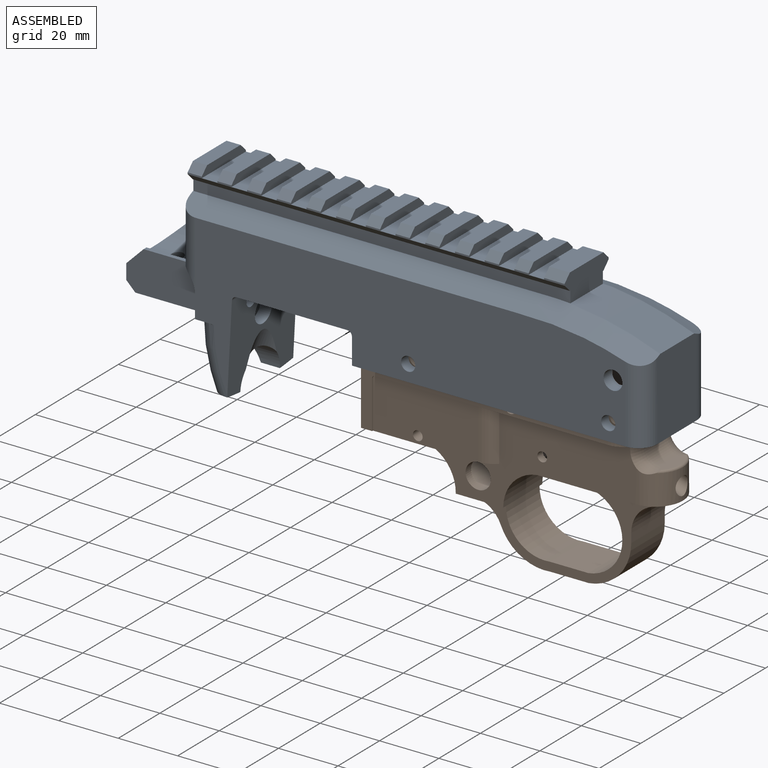
[diagram: assembled view]
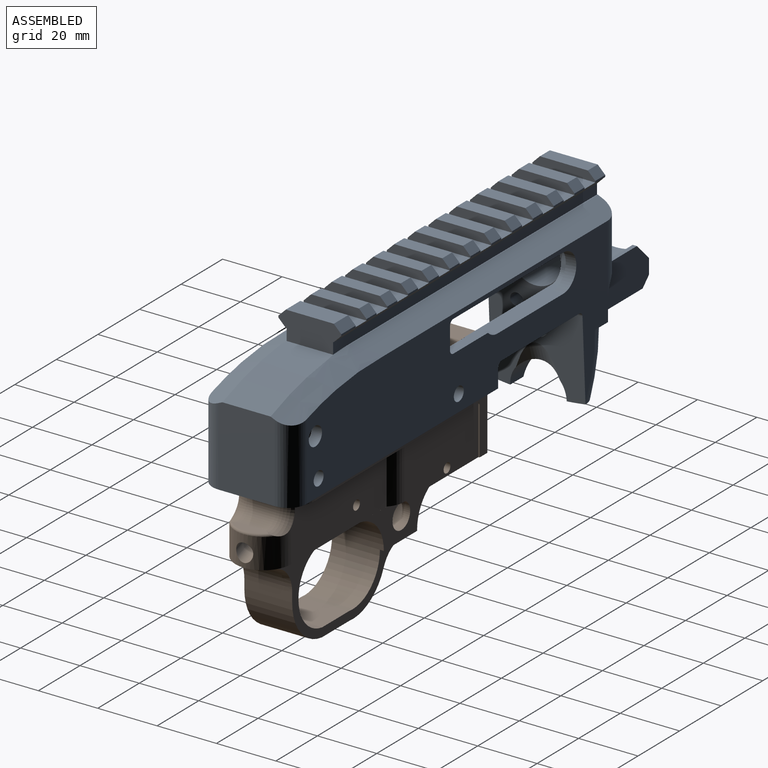
[diagram: assembled view, second angle]
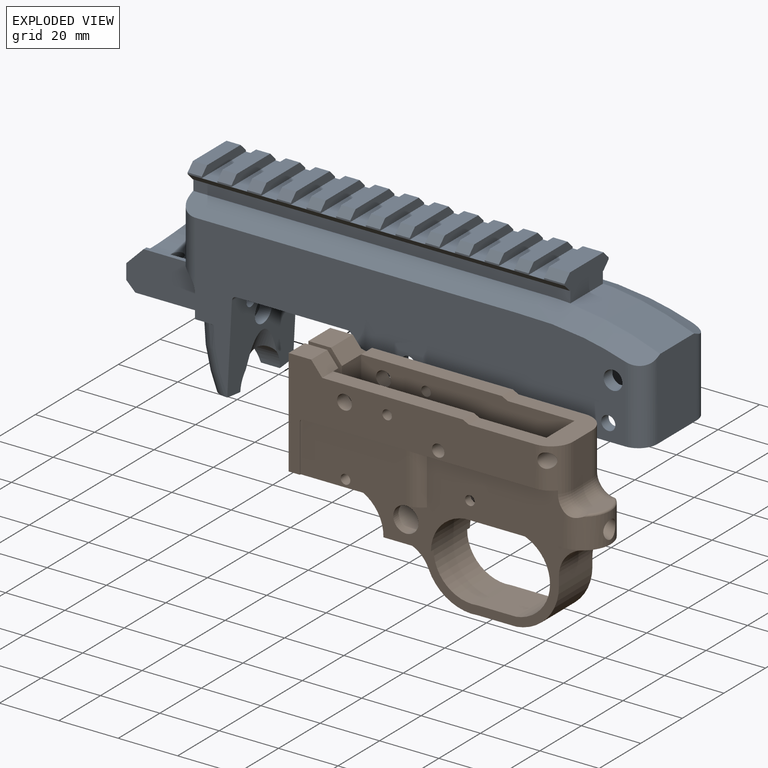
[diagram: exploded view]
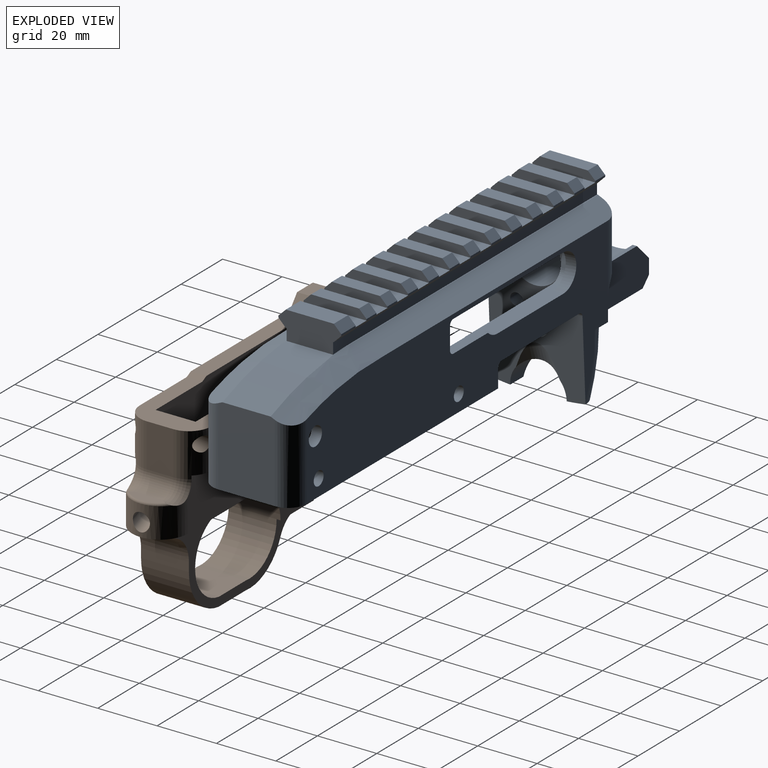
[diagram: exploded view, second angle]
ASSEMBLY  parts=2 mates=2
PART A: 187 faces, bbox 179.1x70.4x36.9 mm
  f0: bspline ~1.6x1.6mm, area 2.3mm2, adj f21
  f1: cylinder r=3.17mm len=31.75mm, axis (0,0,1), area 257.2mm2, adj f23,f41,f42,f43,f44,f45,f46,f47
  f2: cylinder r=2.38mm len=4.76mm, axis (0,0,-1), area 53.2mm2, adj f23,f48
  f3: cylinder r=6.29mm len=12.57mm, axis (0,0,1), area 70mm2, adj f23,f28,f29,f48,f49,f81
  f4: cylinder r=2.38mm len=5.11mm, axis (0,0,1), area 62.1mm2, adj f23,f44,f48
  f5: torus R=47.08mm, axis (0,0,1), area 218.4mm2, adj f9,f23,f37,f38,f63
  f6: cylinder r=11.68mm len=23.37mm, axis (1,0,0), area 466mm2, adj f7,f36,f57,f80,f88,f89,f90,f91
  f7: cylinder r=2.02mm len=8.96mm, axis (0,1,0), area 113.7mm2, adj f6,f37
  f8: torus R=47.08mm, axis (0,0,1), area 218.4mm2, adj f9,f13,f37,f38,f47,f65
  f9: cylinder r=53.43mm len=21.72mm, axis (0,0,1), area 273.6mm2, adj f5,f8,f13,f37
  f10: cylinder r=2.17mm len=19.69mm, axis (1,0,0), area 268.7mm2, adj f38,f96
  f11: cylinder r=2.17mm len=19.69mm, axis (1,0,0), area 268.7mm2, adj f38,f97
  f12: cylinder r=4.1mm len=8.38mm, axis (-1,-0.05,0), area 98.6mm2, adj f38,f98
  f13: cylinder r=9.53mm len=19.05mm, axis (1,0,0), area 244.8mm2, adj f8,f9,f14,f38,f63,f65
  f14: cylinder r=11.11mm len=14.71mm, axis (-0.34,0.94,0), area 75.1mm2, adj f13,f38
  f15: cylinder r=2.38mm len=5.11mm, axis (0,0,1), area 62.1mm2, adj f46,f47,f51
  f16: cylinder r=2.38mm len=4.76mm, axis (0,0,-1), area 53.2mm2, adj f47,f51
  f17: cylinder r=4.39mm len=5.19mm, axis (0,0,1), area 24.3mm2, adj f48,f81,f82,f99
  f18: cylinder r=3.17mm len=19.05mm, axis (1,0,0), area 380mm2, adj f61,f88,f93,f95,f97
  f19: cylinder r=3.17mm len=19.05mm, axis (1,0,0), area 380mm2, adj f61,f88,f94,f95,f96
  f20: cylinder r=8.74mm len=17.66mm, axis (1,0,0), area 969.5mm2, adj f64,f91
  f21: cylinder r=0.8mm len=1.6mm, axis (1,0,0), area 5.6mm2, adj f0,f74
  f22: cylinder r=101.73mm len=38.1mm, axis (0,0,1), area 515.7mm2, adj f35,f54,f55,f79,f87,f103,f104,f105
  f23: plane 144.78x51.45mm, normal (0,0,1), area 3401.5mm2, adj f1,f2,f3,f4,f5,f24,f25,f26
  f24: plane 7.43x3.56mm, normal (-1,0,0), area 26.4mm2, adj f23,f25,f30,f48
  f25: cylinder r=1.59mm len=3.56mm, axis (0,0,1), area 8.9mm2, adj f23,f24,f26,f48
  f26: plane 16.68x3.56mm, normal (0,-1,0), area 59.3mm2, adj f23,f25,f27,f48
  f27: cylinder r=6.35mm len=4.6mm, axis (0,0,1), area 18.3mm2, adj f23,f26,f28,f48
  f28: plane 31.62x3.56mm, normal (0,-1,0), area 112.5mm2, adj f3,f23,f27,f48
  f29: plane 52.9x3.49mm, normal (0,1,0), area 184.7mm2, adj f3,f23,f30,f49
  f30: cylinder r=1.59mm len=3.56mm, axis (0,0,1), area 8.8mm2, adj f23,f24,f29,f48,f49,f81
  f31: cylinder r=1.6mm len=2.89mm, axis (0,0,-1), area 6.4mm2, adj f23,f32,f40,f50
  f32: plane 6.92x3.56mm, normal (-1,0,0), area 22.4mm2, adj f23,f31,f33,f48,f50
  f33: plane 98.43x31.75mm, normal (0,1,0), area 884.6mm2, adj f23,f32,f34,f44,f45,f46,f47,f48
  f34: cylinder r=6.35mm len=26.32mm, axis (0,1,0), area 253.3mm2, adj f23,f33,f35,f54
  f35: extruded ~157.48x12.42mm, area 1319.2mm2, adj f22,f23,f34,f36,f54,f55,f57
  f36: cylinder r=6.35mm len=33.73mm, axis (0,-1,0), area 168.7mm2, adj f6,f23,f35,f37,f56,f57,f58,f60
  f37: plane 31.78x29.82mm, normal (0,1,0), area 525.6mm2, adj f5,f7,f8,f9,f23,f36,f47,f58
  f38: plane 32.73x32.38mm, normal (1,0.05,0), area 710.2mm2, adj f5,f8,f10,f11,f12,f13,f14,f23
  f39: cylinder r=1.6mm len=2.89mm, axis (0,0,1), area 6.2mm2, adj f23,f38,f40,f67
  f40: plane 37.39x2.22mm, normal (0,1,0), area 83.1mm2, adj f23,f31,f39,f67,f68
  f41: plane 127.73x19.05mm, normal (0,0,1), area 2074.5mm2, adj f1,f42,f46,f64,f69,f70,f71,f72
  f42: cylinder r=6.35mm len=6.2mm, axis (0,1,0), area 24.6mm2, adj f1,f41,f43,f73,f75,f76,f102
  f43: plane 11.94x6.2mm, normal (-1,0,0), area 74mm2, adj f1,f42,f44,f73
  f44: cylinder r=6.35mm len=28.13mm, axis (0,1,0), area 208.2mm2, adj f1,f4,f33,f43,f45,f48,f73
  f45: plane 18x11.94mm, normal (-1,0,0), area 214.9mm2, adj f1,f33,f44,f46
  f46: cylinder r=6.35mm len=18mm, axis (0,1,0), area 136mm2, adj f1,f15,f33,f41,f45,f51,f69
  f47: plane 144.78x51.45mm, normal (0,0,-1), area 4006mm2, adj f1,f8,f15,f16,f33,f37,f38,f52
  f48: plane 125.81x29.25mm, normal (0,0,-1), area 2206.1mm2, adj f2,f3,f4,f17,f24,f25,f26,f27
  f49: plane 57.4x0.83mm, normal (0,0,1), area 46.2mm2, adj f3,f29,f30,f81
  f50: cylinder r=1.6mm len=2.93mm, axis (0,-0.71,-0.71), area 3.6mm2, adj f31,f32,f48,f68
  f51: plane 125.04x16.21mm, normal (0,0,1), area 1267.4mm2, adj f15,f16,f33,f38,f46,f52,f64,f66
  f52: plane 8.79x3.56mm, normal (-1,0,0), area 31.3mm2, adj f33,f47,f51,f78
  f53: cylinder r=6.35mm len=26.32mm, axis (0,1,0), area 253.3mm2, adj f33,f47,f54,f79
  f54: plane 26.94x19.05mm, normal (1,0,0), area 512.3mm2, adj f22,f33,f34,f35,f53,f79
  f55: plane 119.38x0.32mm, normal (0,-1,0), area 37.9mm2, adj f22,f35,f57,f104
  f56: cylinder r=6.35mm len=6.34mm, axis (0,0,1), area 37.5mm2, adj f36,f58,f60
  f57: plane 21.21x16.3mm, normal (-1,0,0), area 231.1mm2, adj f6,f35,f36,f55,f79,f80,f87,f103
  f58: plane 7.87x4.76mm, normal (-1,0,0), area 37.5mm2, adj f36,f37,f56,f60
  f59: plane 7.87x4.76mm, normal (-1,0,0), area 37.5mm2, adj f37,f62,f80,f92
  f60: plane 26.49x14.21mm, normal (0,0,1), area 341.3mm2, adj f36,f37,f56,f58,f61,f88,f89,f93
  f61: plane 23.5x4.32mm, normal (-0.71,0.71,0), area 91.1mm2, adj f18,f19,f37,f60,f62,f93,f94,f95
  f62: plane 26.49x14.21mm, normal (0,0,-1), area 341.3mm2, adj f37,f59,f61,f80,f88,f90,f92,f94
  f63: cylinder r=106.61mm len=6.43mm, axis (1,0,0), area 32.4mm2, adj f5,f13,f38
  f64: plane 24.49x20.22mm, normal (1,0,0), area 183.9mm2, adj f20,f38,f41,f51,f71,f72,f81,f86
  f65: extruded ~6.43x6.35mm, area 32.4mm2, adj f8,f13,f38
  f66: cylinder r=1.6mm len=3.56mm, axis (0,0,1), area 8.6mm2, adj f38,f47,f51,f77
  f67: cylinder r=1.6mm len=2.93mm, axis (-0.04,0.71,0.71), area 3.8mm2, adj f38,f39,f40,f48,f68
  f68: plane 37.37x1.33mm, normal (0,0.71,-0.71), area 70.4mm2, adj f40,f48,f50,f67
  f69: plane 66.77x0.64mm, normal (0,1,0), area 41.8mm2, adj f41,f46,f51,f70
  f70: plane 9.71x4.65mm, normal (-0.43,0.9,0), area 6.8mm2, adj f41,f51,f69,f71
  f71: plane 51.25x0.64mm, normal (0,1,0), area 32.5mm2, adj f41,f51,f64,f70
  f72: plane 111.18x19.06mm, normal (0,1,0), area 2118.3mm2, adj f41,f64,f73,f100,f101
  f73: cylinder r=98.55mm len=24mm, axis (0,0,1), area 325.5mm2, adj f41,f42,f43,f44,f48,f72,f74,f81
  f74: plane 5.71x5.46mm, normal (-1,0,0), area 28.3mm2, adj f21,f41,f73,f75,f76,f102
  f75: plane 17.72x4.19mm, normal (0,1,0), area 69.3mm2, adj f41,f42,f74,f76
  f76: plane 17.91x1.28mm, normal (0,0.71,0.71), area 32mm2, adj f42,f74,f75,f102
  f77: plane 37.26x3.56mm, normal (0,1,0), area 132.5mm2, adj f47,f51,f66,f78
  f78: cylinder r=1.6mm len=3.56mm, axis (0,0,1), area 8.9mm2, adj f47,f51,f52,f77
  f79: extruded ~157.48x12.43mm, area 1318.7mm2, adj f22,f47,f53,f54,f57,f80,f87
  f80: cylinder r=6.35mm len=33.73mm, axis (0,-1,0), area 168.7mm2, adj f6,f37,f47,f57,f59,f62,f79,f90
  f81: plane 123.15x7.39mm, normal (0,1,0), area 599.4mm2, adj f3,f17,f30,f48,f49,f64,f73,f99
  f82: plane 3.44x3.15mm, normal (0.98,-0.18,0), area 11mm2, adj f17,f48,f83,f99
  f83: cylinder r=4.39mm len=4.32mm, axis (0,0,1), area 19.2mm2, adj f48,f82,f84,f99
  f84: plane 41.81x3.15mm, normal (0,-1,0), area 131.7mm2, adj f48,f83,f85,f99
  f85: plane 6.46x3.15mm, normal (1,0,0), area 11.9mm2, adj f48,f84,f86,f99
  f86: cylinder r=7.05mm len=46.88mm, axis (1,0,0), area 253.1mm2, adj f38,f48,f64,f85,f99
  f87: plane 119.38x0.32mm, normal (0,-1,0), area 37.9mm2, adj f22,f57,f79,f103
  f88: plane 23.5x7.11mm, normal (-0.71,-0.71,0), area 78.9mm2, adj f6,f18,f19,f60,f62,f89,f90,f93
  f89: plane 14.68x1.41mm, normal (0,-1,0), area 20.4mm2, adj f6,f36,f60,f88
  f90: plane 14.68x1.41mm, normal (0,-1,0), area 20.4mm2, adj f6,f62,f80,f88
  f91: plane 23.37x23.37mm, normal (-1,0,0), area 189mm2, adj f6,f20
  f92: cylinder r=6.35mm len=6.34mm, axis (0,0,1), area 37.5mm2, adj f59,f62,f80
  f93: plane 5.08x2.86mm, normal (-1,0,0), area 10mm2, adj f18,f60,f61,f88
  f94: plane 5.08x2.86mm, normal (-1,0,0), area 10mm2, adj f19,f61,f62,f88
  f95: plane 8.89x5.08mm, normal (-1,0,0), area 36.1mm2, adj f18,f19,f61,f88
  f96: plane 6.35x6.35mm, normal (-1,0,0), area 16.9mm2, adj f10,f19
  f97: plane 6.35x6.35mm, normal (-1,0,0), area 16.9mm2, adj f11,f18
  f98: plane 8.19x8.18mm, normal (1,0.05,0), area 52.7mm2, adj f12
  f99: plane 46.86x14.46mm, normal (0,0,-1), area 116.9mm2, adj f17,f64,f81,f82,f83,f84,f85,f86
  f100: cylinder r=2.39mm len=2.39mm, axis (0,1,0), area 7.6mm2, adj f64,f72,f81,f101
  f101: plane 120.77x2.03mm, normal (0,0,-1), area 234.8mm2, adj f72,f73,f81,f100
  f102: plane 17.9x4.44mm, normal (0,0,1), area 48.4mm2, adj f42,f73,f74,f76
  f103: plane 127x3.89mm, normal (0,0,-1), area 458.8mm2, adj f22,f57,f87,f105,f146
  f104: plane 127x3.89mm, normal (0,0,1), area 458.8mm2, adj f22,f55,f57,f105,f147
  f105: plane 21.21x9.48mm, normal (1,0,0), area 166.7mm2, adj f22,f103,f104,f142,f143,f144,f145,f146
  f106: plane 16.15x4.78mm, normal (0,-1,0), area 77.1mm2, adj f107,f108,f182,f184
  f107: plane 4.78x2.53mm, normal (0,-0.71,-0.71), area 17.1mm2, adj f106,f144,f182,f184
  f108: plane 4.78x2.53mm, normal (0,-0.71,0.71), area 17.1mm2, adj f106,f149,f182,f184
  f109: plane 16.15x4.78mm, normal (0,-1,0), area 77.1mm2, adj f110,f111,f179,f181
  f110: plane 4.78x2.53mm, normal (0,-0.71,-0.71), area 17.1mm2, adj f109,f144,f179,f181
  f111: plane 4.78x2.53mm, normal (0,-0.71,0.71), area 17.1mm2, adj f109,f149,f179,f181
  f112: plane 16.15x4.78mm, normal (0,-1,0), area 77.1mm2, adj f113,f114,f176,f178
  f113: plane 4.78x2.53mm, normal (0,-0.71,-0.71), area 17.1mm2, adj f112,f144,f176,f178
  f114: plane 4.78x2.53mm, normal (0,-0.71,0.71), area 17.1mm2, adj f112,f149,f176,f178
  f115: plane 16.15x4.78mm, normal (0,-1,0), area 77.1mm2, adj f116,f117,f173,f175
  f116: plane 4.78x2.53mm, normal (0,-0.71,-0.71), area 17.1mm2, adj f115,f144,f173,f175
  f117: plane 4.78x2.53mm, normal (0,-0.71,0.71), area 17.1mm2, adj f115,f149,f173,f175
  f118: plane 16.15x4.78mm, normal (0,-1,0), area 77.1mm2, adj f119,f120,f170,f172
  f119: plane 4.78x2.53mm, normal (0,-0.71,-0.71), area 17.1mm2, adj f118,f144,f170,f172
  f120: plane 4.78x2.53mm, normal (0,-0.71,0.71), area 17.1mm2, adj f118,f149,f170,f172
  f121: plane 16.15x4.78mm, normal (0,-1,0), area 77.1mm2, adj f122,f123,f167,f169
  f122: plane 4.78x2.53mm, normal (0,-0.71,-0.71), area 17.1mm2, adj f121,f144,f167,f169
  f123: plane 4.78x2.53mm, normal (0,-0.71,0.71), area 17.1mm2, adj f121,f149,f167,f169
  f124: plane 16.15x4.78mm, normal (0,-1,0), area 77.1mm2, adj f125,f126,f164,f166
  f125: plane 4.78x2.53mm, normal (0,-0.71,-0.71), area 17.1mm2, adj f124,f144,f164,f166
  f126: plane 4.78x2.53mm, normal (0,-0.71,0.71), area 17.1mm2, adj f124,f149,f164,f166
  f127: plane 16.15x4.78mm, normal (0,-1,0), area 77.1mm2, adj f128,f129,f161,f163
  f128: plane 4.78x2.53mm, normal (0,-0.71,-0.71), area 17.1mm2, adj f127,f144,f161,f163
  f129: plane 4.78x2.53mm, normal (0,-0.71,0.71), area 17.1mm2, adj f127,f149,f161,f163
  f130: plane 16.15x4.78mm, normal (0,-1,0), area 77.1mm2, adj f131,f132,f158,f160
  f131: plane 4.78x2.53mm, normal (0,-0.71,-0.71), area 17.1mm2, adj f130,f144,f158,f160
  f132: plane 4.78x2.53mm, normal (0,-0.71,0.71), area 17.1mm2, adj f130,f149,f158,f160
  f133: plane 16.15x4.78mm, normal (0,-1,0), area 77.1mm2, adj f134,f135,f155,f157
  f134: plane 4.78x2.53mm, normal (0,-0.71,-0.71), area 17.1mm2, adj f133,f144,f155,f157
  f135: plane 4.78x2.53mm, normal (0,-0.71,0.71), area 17.1mm2, adj f133,f149,f155,f157
  f136: plane 16.15x4.78mm, normal (0,-1,0), area 77.1mm2, adj f137,f138,f152,f154
  f137: plane 4.78x2.53mm, normal (0,-0.71,-0.71), area 17.1mm2, adj f136,f144,f152,f154
  f138: plane 4.78x2.53mm, normal (0,-0.71,0.71), area 17.1mm2, adj f136,f149,f152,f154
  f139: plane 16.15x4.78mm, normal (0,-1,0), area 77.1mm2, adj f57,f140,f141,f151
  f140: plane 4.78x2.53mm, normal (0,-0.71,-0.71), area 17.1mm2, adj f57,f139,f144,f151
  f141: plane 4.78x2.53mm, normal (0,-0.71,0.71), area 17.1mm2, adj f57,f139,f149,f151
  f142: plane 16.15x6.91mm, normal (0,-1,0), area 111.6mm2, adj f105,f143,f150,f185
  f143: plane 6.91x2.53mm, normal (0,-0.71,-0.71), area 24.7mm2, adj f105,f142,f144,f185
  f144: plane 127x0.53mm, normal (0,0,-1), area 38.2mm2, adj f57,f105,f107,f110,f113,f116,f119,f122
  f145: plane 127x2.53mm, normal (0,0.71,-0.71), area 453.9mm2, adj f57,f105,f144,f146
  f146: plane 127x0.24mm, normal (0,1,0), area 30.6mm2, adj f57,f103,f105,f145
  f147: plane 127x0.24mm, normal (0,1,0), area 30.6mm2, adj f57,f104,f105,f148
  f148: plane 127x2.53mm, normal (0,0.71,0.71), area 453.9mm2, adj f57,f105,f147,f149
  f149: plane 127x0.53mm, normal (0,0,1), area 38.2mm2, adj f57,f105,f108,f111,f114,f117,f120,f123
  f150: plane 6.91x2.53mm, normal (0,-0.71,0.71), area 24.7mm2, adj f105,f142,f149,f185
  f151: plane 21.21x3mm, normal (1,0,0), area 57.2mm2, adj f139,f140,f141,f144,f149,f153
  f152: plane 21.21x3mm, normal (-1,0,0), area 57.2mm2, adj f136,f137,f138,f144,f149,f153
  f153: plane 21.21x5.23mm, normal (0,-1,0), area 111mm2, adj f144,f149,f151,f152
  f154: plane 21.21x3mm, normal (1,0,0), area 57.2mm2, adj f136,f137,f138,f144,f149,f156
  f155: plane 21.21x3mm, normal (-1,0,0), area 57.2mm2, adj f133,f134,f135,f144,f149,f156
  f156: plane 21.21x5.23mm, normal (0,-1,0), area 111mm2, adj f144,f149,f154,f155
  f157: plane 21.21x3mm, normal (1,0,0), area 57.2mm2, adj f133,f134,f135,f144,f149,f159
  f158: plane 21.21x3mm, normal (-1,0,0), area 57.2mm2, adj f130,f131,f132,f144,f149,f159
  f159: plane 21.21x5.23mm, normal (0,-1,0), area 111mm2, adj f144,f149,f157,f158
  f160: plane 21.21x3mm, normal (1,0,0), area 57.2mm2, adj f130,f131,f132,f144,f149,f162
  f161: plane 21.21x3mm, normal (-1,0,0), area 57.2mm2, adj f127,f128,f129,f144,f149,f162
  f162: plane 21.21x5.23mm, normal (0,-1,0), area 111mm2, adj f144,f149,f160,f161
  f163: plane 21.21x3mm, normal (1,0,0), area 57.2mm2, adj f127,f128,f129,f144,f149,f165
  f164: plane 21.21x3mm, normal (-1,0,0), area 57.2mm2, adj f124,f125,f126,f144,f149,f165
  f165: plane 21.21x5.23mm, normal (0,-1,0), area 111mm2, adj f144,f149,f163,f164
  f166: plane 21.21x3mm, normal (1,0,0), area 57.2mm2, adj f124,f125,f126,f144,f149,f168
  f167: plane 21.21x3mm, normal (-1,0,0), area 57.2mm2, adj f121,f122,f123,f144,f149,f168
  f168: plane 21.21x5.23mm, normal (0,-1,0), area 111mm2, adj f144,f149,f166,f167
  f169: plane 21.21x3mm, normal (1,0,0), area 57.2mm2, adj f121,f122,f123,f144,f149,f171
  f170: plane 21.21x3mm, normal (-1,0,0), area 57.2mm2, adj f118,f119,f120,f144,f149,f171
  f171: plane 21.21x5.23mm, normal (0,-1,0), area 111mm2, adj f144,f149,f169,f170
  f172: plane 21.21x3mm, normal (1,0,0), area 57.2mm2, adj f118,f119,f120,f144,f149,f174
  f173: plane 21.21x3mm, normal (-1,0,0), area 57.2mm2, adj f115,f116,f117,f144,f149,f174
  f174: plane 21.21x5.23mm, normal (0,-1,0), area 111mm2, adj f144,f149,f172,f173
  f175: plane 21.21x3mm, normal (1,0,0), area 57.2mm2, adj f115,f116,f117,f144,f149,f177
  f176: plane 21.21x3mm, normal (-1,0,0), area 57.2mm2, adj f112,f113,f114,f144,f149,f177
  f177: plane 21.21x5.23mm, normal (0,-1,0), area 111mm2, adj f144,f149,f175,f176
  f178: plane 21.21x3mm, normal (1,0,0), area 57.2mm2, adj f112,f113,f114,f144,f149,f180
  f179: plane 21.21x3mm, normal (-1,0,0), area 57.2mm2, adj f109,f110,f111,f144,f149,f180
  f180: plane 21.21x5.23mm, normal (0,-1,0), area 111mm2, adj f144,f149,f178,f179
  f181: plane 21.21x3mm, normal (1,0,0), area 57.2mm2, adj f109,f110,f111,f144,f149,f183
  f182: plane 21.21x3mm, normal (-1,0,0), area 57.2mm2, adj f106,f107,f108,f144,f149,f183
  f183: plane 21.21x5.23mm, normal (0,-1,0), area 111mm2, adj f144,f149,f181,f182
  f184: plane 21.21x3mm, normal (1,0,0), area 57.2mm2, adj f106,f107,f108,f144,f149,f186
  f185: plane 21.21x3mm, normal (-1,0,0), area 57.2mm2, adj f142,f143,f144,f149,f150,f186
  f186: plane 21.21x5.23mm, normal (0,-1,0), area 111mm2, adj f144,f149,f184,f185
PART B: 110 faces, bbox 103.6x66.7x27.2 mm
  f0: bspline ~11.71x5.5mm, area 24.4mm2, adj f20,f36,f71,f107
  f1: torus R=0.12mm, axis (-0.66,-0.66,0.34), area 27.6mm2, adj f2,f105
  f2: cylinder r=2.12mm len=10.72mm, axis (-0.66,-0.66,0.34), area 144.5mm2, adj f1,f87
  f3: cylinder r=1.62mm len=8.03mm, axis (-0.64,0.77,0), area 73mm2, adj f95,f98,f99
  f4: torus R=6.88mm, axis (1,0,0), area 29.2mm2, adj f21,f41,f56,f57
  f5: cylinder r=4.25mm len=18.75mm, axis (0,0,-1), area 162.7mm2, adj f22,f28,f29,f48,f95,f96
  f6: cylinder r=13.11mm len=26.11mm, axis (0,0,-1), area 644.3mm2, adj f22,f25,f28,f29,f31,f32,f48,f81
  f7: cylinder r=1.62mm len=3.25mm, axis (0,0,1), area 26.8mm2, adj f22,f64
  f8: cylinder r=1.62mm len=3.25mm, axis (0,0,1), area 26.8mm2, adj f48,f66
  f9: cylinder r=2.1mm len=5.25mm, axis (0,0,1), area 69.3mm2, adj f22,f42
  f10: cylinder r=2.1mm len=5.25mm, axis (0,0,1), area 69.3mm2, adj f44,f48
  f11: cylinder r=1.62mm len=5.25mm, axis (0,0,1), area 53.6mm2, adj f22,f42
  f12: cylinder r=1.62mm len=5.25mm, axis (0,0,1), area 53.6mm2, adj f44,f48
  f13: cylinder r=1.62mm len=4.85mm, axis (0,0,1), area 49.5mm2, adj f48,f77
  f14: cylinder r=1.62mm len=4.85mm, axis (0,0,1), area 49.5mm2, adj f22,f78
  f15: cylinder r=2.5mm len=5.25mm, axis (0,0,1), area 82.5mm2, adj f22,f42
  f16: cylinder r=2.5mm len=5.25mm, axis (0,0,1), area 82.5mm2, adj f44,f48
  f17: cylinder r=2.5mm len=23.95mm, axis (0,0,1), area 337.2mm2, adj f74,f76
  f18: cylinder r=5.25mm len=10.5mm, axis (-1,0,0), area 34.6mm2, adj f45,f54
  f19: cylinder r=2.88mm len=13.22mm, axis (-0.94,0.34,0), area 197.4mm2, adj f34,f35
  f20: cylinder r=4.5mm len=13.57mm, axis (-0.94,0.34,0), area 258.9mm2, adj f0,f35,f107
  f21: cylinder r=6.38mm len=12.75mm, axis (-1,0,0), area 382.4mm2, adj f4,f54,f56,f57,f58
  f22: plane 71.9x41.27mm, normal (0,0,-1), area 2260.9mm2, adj f5,f6,f7,f9,f11,f14,f15,f23
  f23: plane 2.62x1.1mm, normal (-1,0,0), area 2.9mm2, adj f22,f27,f28,f32
  f24: plane 11.25x3.5mm, normal (0,1,0), area 39.4mm2, adj f48,f94,f96,f100
  f25: plane 13.5x1.62mm, normal (1,0,0), area 21.9mm2, adj f6,f22,f26,f48
  f26: plane 13.5x3.88mm, normal (0,1,0), area 52.3mm2, adj f22,f25,f48,f95
  f27: cylinder r=13mm len=18.75mm, axis (0,0,-1), area 249.1mm2, adj f22,f23,f28,f29,f90,f94,f100,f101
  f28: plane 34.53x13mm, normal (0,0,1), area 218.1mm2, adj f5,f6,f23,f27,f32,f90
  f29: plane 34.53x13mm, normal (0,0,-1), area 218.1mm2, adj f5,f6,f27,f33,f89,f90,f94
  f30: plane 10.96x1.77mm, normal (0,-1,0), area 13.2mm2, adj f34,f92
  f31: plane 37.96x2.63mm, normal (0,-1,0), area 69.3mm2, adj f6,f34,f48,f66,f82,f87
  f32: plane 95.49x6.75mm, normal (0,-1,0), area 239.6mm2, adj f6,f22,f23,f28,f34,f41,f42,f45
  f33: plane 44.75x5.25mm, normal (0,-1,0), area 157.6mm2, adj f29,f41,f44,f48,f68,f77,f80,f94
  f34: cylinder r=9.38mm len=18.75mm, axis (0,-1,0), area 275.8mm2, adj f19,f30,f31,f32,f64,f66,f73,f75
  f35: plane 9x8.46mm, normal (-0.94,0.34,0), area 37.7mm2, adj f19,f20
  f36: plane 19.37x13.5mm, normal (-1,0,0), area 161.9mm2, adj f0,f22,f48,f71,f87,f107
  f37: plane 10.5x7.6mm, normal (0,1,0), area 79.8mm2, adj f38,f41,f60,f102
  f38: plane 11.65x4.58mm, normal (0.78,0.63,0), area 62.6mm2, adj f37,f40,f45,f60,f102,f103
  f39: plane 47.4x5.25mm, normal (0,1,0), area 248.8mm2, adj f22,f42,f51,f53
  f40: plane 47.4x5.25mm, normal (0,1,0), area 248.8mm2, adj f38,f44,f48,f52,f104
  f41: plane 36.08x24mm, normal (-1,0,0), area 536mm2, adj f4,f32,f33,f37,f42,f44,f46,f48
  f42: plane 83.2x36.08mm, normal (0,0,1), area 1248.4mm2, adj f9,f11,f15,f32,f39,f41,f49,f50
  f43: plane 14.65x9mm, normal (1,0,0), area 131.8mm2, adj f50,f72,f74,f76
  f44: plane 83.2x31.5mm, normal (0,0,-1), area 1174.9mm2, adj f10,f12,f16,f33,f40,f41,f50,f52
  f45: plane 31.5x13.5mm, normal (1,0,0), area 217.7mm2, adj f18,f22,f32,f38,f48,f51,f55,f59
  f46: plane 9.68x3mm, normal (0,0,-1), area 29mm2, adj f32,f41,f55,f109
  f47: plane 13.5x10.75mm, normal (-1,0,0), area 145.1mm2, adj f22,f48,f50,f71
  f48: plane 83.2x41.27mm, normal (0,0,1), area 2356.5mm2, adj f5,f6,f8,f10,f12,f13,f16,f24
  f49: plane 7.75x7.6mm, normal (0,1,0), area 58.9mm2, adj f41,f42,f51,f61
  f50: plane 30x24mm, normal (0,1,0), area 392.1mm2, adj f22,f42,f43,f44,f47,f48,f52,f53
  f51: plane 7.75x4.58mm, normal (0.78,0.63,0), area 45.6mm2, adj f39,f42,f45,f49,f61
  f52: plane 5.25x2mm, normal (0.45,0.89,0), area 11.7mm2, adj f40,f44,f48,f50
  f53: plane 5.25x2mm, normal (0.45,0.89,0), area 11.7mm2, adj f22,f39,f42,f50
  f54: plane 12.75x12.75mm, normal (-1,0,0), area 41.1mm2, adj f18,f21
  f55: plane 13.5x11.3mm, normal (0,-1,0), area 130.1mm2, adj f41,f45,f46,f48,f56,f57,f58,f108
  f56: plane 4.91x2.56mm, normal (0,0,1), area 12.1mm2, adj f4,f21,f41,f55,f58
  f57: plane 4.91x2.56mm, normal (0,0,-1), area 12.1mm2, adj f4,f21,f41,f55,f58
  f58: plane 4.85x4mm, normal (-1,0,0), area 18.5mm2, adj f21,f55,f56,f57
  f59: plane 11.3x1.75mm, normal (0,1,0), area 19.8mm2, adj f41,f45,f60,f61
  f60: plane 11.3x7.3mm, normal (0,0,1), area 74mm2, adj f37,f38,f41,f45,f59
  f61: plane 11.3x7.3mm, normal (0,0,-1), area 74mm2, adj f41,f45,f49,f51,f59
  f62: plane 16x0.4mm, normal (1,0,0), area 6.4mm2, adj f32,f42,f65,f78
  f63: plane 84.15x2.63mm, normal (0,-1,0), area 131mm2, adj f42,f64,f65,f76,f78,f79
  f64: plane 45.95x17mm, normal (0,0,1), area 765.1mm2, adj f7,f32,f34,f63,f75,f76,f79
  f65: cylinder r=1mm len=1mm, axis (0,0,-1), area 0.6mm2, adj f42,f62,f63,f78
  f66: plane 45.95x17mm, normal (0,0,-1), area 765.1mm2, adj f8,f31,f34,f67,f73,f74,f80,f89
  f67: plane 84.15x2.63mm, normal (0,-1,0), area 131mm2, adj f44,f66,f69,f74,f77,f80
  f68: plane 16x0.4mm, normal (1,0,0), area 6.4mm2, adj f33,f44,f69,f77
  f69: cylinder r=1mm len=1mm, axis (0,0,1), area 0.6mm2, adj f44,f67,f68,f77
  f70: plane 11.96x3.64mm, normal (0,1,0), area 32.6mm2, adj f72,f73,f75,f106
  f71: plane 13.76x3.26mm, normal (-0.71,0.71,0), area 57mm2, adj f0,f22,f36,f47,f48,f107
  f72: cylinder r=5mm len=9mm, axis (0,0,-1), area 70.7mm2, adj f43,f70,f73,f75
  f73: torus R=12.5mm, axis (0,0,1), area 44.7mm2, adj f34,f66,f70,f72,f74,f106
  f74: cylinder r=7.5mm len=14.65mm, axis (0,-1,0), area 142.9mm2, adj f17,f43,f44,f50,f66,f67,f73
  f75: torus R=12.5mm, axis (0,0,-1), area 44.7mm2, adj f34,f64,f70,f72,f76,f106
  f76: cylinder r=7.5mm len=14.65mm, axis (0,-1,0), area 142.9mm2, adj f17,f42,f43,f50,f63,f64,f75
  f77: plane 35.67x17mm, normal (0,0,-1), area 597.9mm2, adj f13,f33,f67,f68,f69,f80
  f78: plane 35.67x17mm, normal (0,0,1), area 597.9mm2, adj f14,f32,f62,f63,f65,f79
  f79: cylinder r=7.5mm len=17mm, axis (0,1,0), area 100.8mm2, adj f32,f63,f64,f78
  f80: cylinder r=7.5mm len=17mm, axis (0,1,0), area 100.8mm2, adj f33,f66,f67,f77,f89
  f81: plane 61.94x30.64mm, normal (0,0,1), area 281mm2, adj f6,f32,f83,f84,f85,f86,f87,f88
  f82: plane 61.91x30.62mm, normal (0,0,-1), area 281mm2, adj f6,f31,f83,f84,f85,f86,f87,f88
  f83: cylinder r=16.11mm len=16.73mm, axis (0,0,-1), area 335.7mm2, adj f81,f82,f84,f97
  f84: plane 16.12x12.99mm, normal (0,-1,0), area 209.4mm2, adj f81,f82,f83,f85
  f85: cylinder r=16.11mm len=16.12mm, axis (0,0,-1), area 378.1mm2, adj f81,f82,f84,f86
  f86: plane 16.12x3.15mm, normal (1,0,0), area 48.6mm2, adj f81,f82,f85,f91,f92,f93
  f87: cylinder r=13.11mm len=26mm, axis (0,0,-1), area 500.8mm2, adj f2,f22,f31,f32,f36,f48,f81,f82
  f88: plane 16.12x12.99mm, normal (0,1,0), area 209.4mm2, adj f6,f81,f82,f87
  f89: plane 12.79x0.01mm, normal (0,1,0), area 0.1mm2, adj f6,f29,f66,f80
  f90: plane 18.75x16mm, normal (0,-1,0), area 122.5mm2, adj f6,f27,f28,f29,f81,f82,f97
  f91: bspline ~10x10mm, area 42.8mm2, adj f34,f82,f86,f92
  f92: cylinder r=10mm len=10.96mm, axis (0,0,-1), area 172.2mm2, adj f30,f86,f91,f93
  f93: bspline ~10x10mm, area 42.8mm2, adj f34,f81,f86,f92
  f94: plane 13.88x1.1mm, normal (-1,0,0), area 15.2mm2, adj f24,f27,f29,f33,f100
  f95: cylinder r=11.26mm len=13.5mm, axis (0,0,1), area 198.9mm2, adj f3,f5,f22,f26,f48,f98
  f96: cylinder r=11.26mm len=13.5mm, axis (0,0,1), area 191.2mm2, adj f5,f22,f24,f48,f100,f101
  f97: cylinder r=10mm len=16.12mm, axis (0,0,-1), area 189.8mm2, adj f81,f82,f83,f90
  f98: plane 1.91x0.24mm, normal (0.64,-0.77,0), area 0.4mm2, adj f3,f95
  f99: plane 3.25x2.49mm, normal (-0.64,0.77,0), area 8.3mm2, adj f3
  f100: plane 9.49x6.7mm, normal (0,0,1), area 13.8mm2, adj f24,f27,f94,f96,f101
  f101: plane 2.99x2.25mm, normal (-1,0,0), area 6.7mm2, adj f22,f27,f96,f100
  f102: plane 10.43x3.5mm, normal (0,0,-1), area 31.5mm2, adj f37,f38,f41,f103
  f103: plane 11.3x4mm, normal (0,0.73,-0.68), area 61.3mm2, adj f38,f41,f44,f102,f104
  f104: plane 2.85x2.67mm, normal (-1,0,0), area 3.8mm2, adj f40,f44,f103
  f105: plane 0.24x0.19mm, normal (-0.66,-0.66,0.34), area 0mm2, adj f1
  f106: torus R=8.62mm, axis (0,1,0), area 18.7mm2, adj f34,f70,f73,f75
  f107: bspline ~11.71x5.5mm, area 24.4mm2, adj f0,f20,f36,f71
  f108: plane 9.68x8.3mm, normal (0,0,-1), area 80.3mm2, adj f32,f45,f55,f109
  f109: plane 9.68x1.5mm, normal (-1,0,0), area 14.5mm2, adj f32,f46,f55,f108
PLACE A rot(axis=(-1,0,0),90deg) t=(16.49,-20.35,5.93)mm
PLACE B rot(axis=(1,0,0),90deg) t=(7.59,-1.71,-14.58)mm
MATE parallel B.f44 <-> A.f48  axis (0,1,0) through (-9.9,-8.03,15.92)mm
MATE cylindrical B.f15 <-> A.f16  axis (0,1,0) through (-63.02,-8.03,11.52)mm
